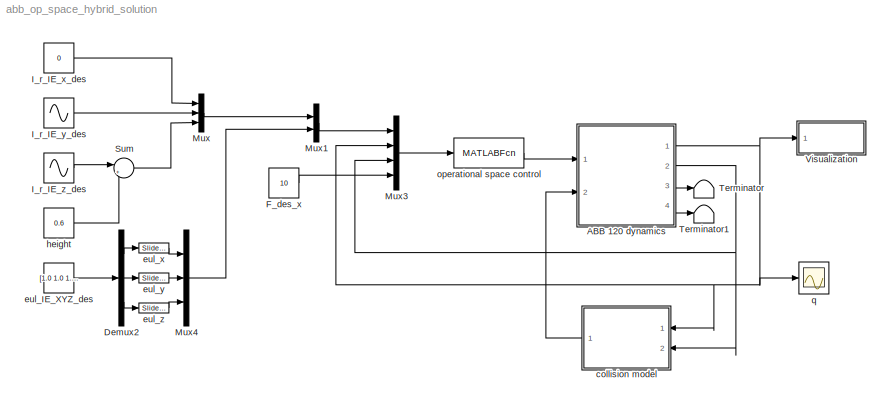
MODEL abb_op_space_hybrid_solution
KIND model
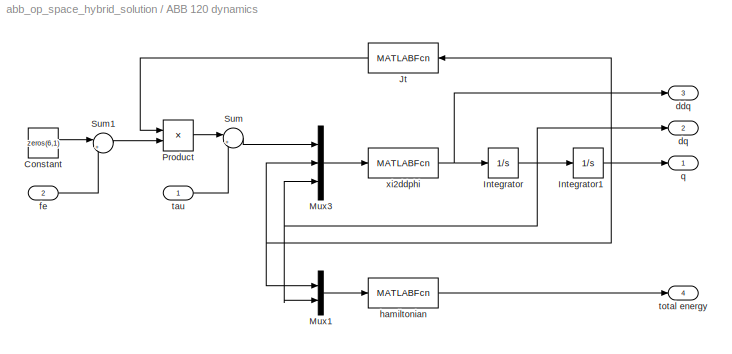
BLOCK [SubSystem] ABB 120 dynamics
  Ports = [2, 4]
  RequestExecContextInheritance = off
  SID = 196
  Variant = off
BLOCK [Constant] ABB 120 dynamics/Constant
  SID = 199
  Value = zeros(6,1)
BLOCK [Integrator] ABB 120 dynamics/Integrator
  InitialCondition = dphi0
  Ports = [1, 1]
  SID = 200
BLOCK [Integrator] ABB 120 dynamics/Integrator1
  InitialCondition = phi0
  Ports = [1, 1]
  SID = 201
BLOCK [MATLABFcn] ABB 120 dynamics/Jt
  MATLABFcn = I_Je_fun_solution(u(1:6))'
  Output1D = off
  OutputDimensions = [6,6]
  OutputSignalType = real
  Ports = [1, 1]
  SID = 202
BLOCK [Mux] ABB 120 dynamics/Mux1
  DisplayOption = bar
  Inputs = 2
  Ports = [2, 1]
  SID = 203
BLOCK [Mux] ABB 120 dynamics/Mux3
  DisplayOption = bar
  Inputs = 3
  Ports = [3, 1]
  SID = 204
BLOCK [Product] ABB 120 dynamics/Product
  InputSameDT = off
  Multiplication = Matrix(*)
  OutDataTypeStr = Inherit: Inherit via internal rule
  Ports = [2, 1]
  RndMeth = Floor
  SID = 205
  SaturateOnIntegerOverflow = off
BLOCK [Sum] ABB 120 dynamics/Sum
  IconShape = round
  InputSameDT = off
  Inputs = |++
  OutDataTypeStr = Inherit: Inherit via internal rule
  Ports = [2, 1]
  SID = 206
  SaturateOnIntegerOverflow = off
BLOCK [Sum] ABB 120 dynamics/Sum1
  IconShape = round
  InputSameDT = off
  Inputs = |++
  OutDataTypeStr = Inherit: Inherit via internal rule
  Ports = [2, 1]
  SID = 207
  SaturateOnIntegerOverflow = off
BLOCK [Outport] ABB 120 dynamics/ddq
  IconDisplay = Port number
  Port = 3
  SID = 212
BLOCK [Outport] ABB 120 dynamics/dq
  IconDisplay = Port number
  Port = 2
  SID = 211
BLOCK [Inport] ABB 120 dynamics/fe
  IconDisplay = Port number
  Port = 2
  SID = 198
BLOCK [MATLABFcn] ABB 120 dynamics/hamiltonian
  MATLABFcn = hamiltonian_fun_solution(u(1:6), u(7:12))
  Output1D = off
  OutputDimensions = [1,1]
  Ports = [1, 1]
  SID = 208
BLOCK [Outport] ABB 120 dynamics/q
  IconDisplay = Port number
  SID = 210
BLOCK [Inport] ABB 120 dynamics/tau
  IconDisplay = Port number
  SID = 197
BLOCK [Outport] ABB 120 dynamics/total energy
  IconDisplay = Port number
  Port = 4
  SID = 213
BLOCK [MATLABFcn] ABB 120 dynamics/xi2ddphi
  MATLABFcn = abb_eom_solution(u(1:6), u(7:12), u(13:18),F,enable_g,enable_f)
  Output1D = off
  OutputDimensions = [6,1]
  Ports = [1, 1]
  SID = 209
BLOCK [Demux] Demux2
  DisplayOption = bar
  Outputs = 3
  Ports = [1, 3]
  SID = 216
BLOCK [Constant] F_des_x
  SID = 138
  Value = 10
BLOCK [Constant] I_r_IE_x_des
  SID = 185
  Value = 0
BLOCK [Sin] I_r_IE_y_des
  Amplitude = 0.1
  Frequency = 2*pi*0.2
  Phase = pi/2
  Ports = [0, 1]
  SID = 180
  SampleTime = 0
BLOCK [Sin] I_r_IE_z_des
  Amplitude = 0.1
  Frequency = 2*pi*0.2
  Ports = [0, 1]
  SID = 184
  SampleTime = 0
BLOCK [Mux] Mux
  DisplayOption = bar
  Inputs = 3
  Ports = [3, 1]
  SID = 181
BLOCK [Mux] Mux1
  DisplayOption = bar
  Inputs = 2
  Ports = [2, 1]
  SID = 186
BLOCK [Mux] Mux3
  DisplayOption = bar
  Ports = [4, 1]
  SID = 135
BLOCK [Mux] Mux4
  DisplayOption = bar
  Inputs = 3
  Ports = [3, 1]
  SID = 217
BLOCK [Sum] Sum
  IconShape = round
  InputSameDT = off
  Inputs = |++
  OutDataTypeStr = Inherit: Inherit via internal rule
  Ports = [2, 1]
  SID = 187
  SaturateOnIntegerOverflow = off
BLOCK [Terminator] Terminator
  SID = 214
BLOCK [Terminator] Terminator1
  SID = 215
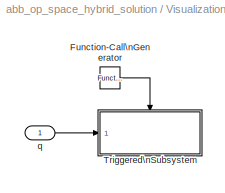
BLOCK [SubSystem] Visualization
  Ports = [1]
  RequestExecContextInheritance = off
  SID = 189
  Variant = off
BLOCK [Reference] Visualization/Function-Call\nGenerator  REF=simulink/Ports &\nSubsystems/Function-Call\nGenerator
  Ports = [0, 1]
  SID = 191
  SourceBlock = simulink/Ports &\nSubsystems/Function-Call\nGenerator
  SourceType = Function-Call Generator
  numberOfIterations = 1
  sample_time = 0.05
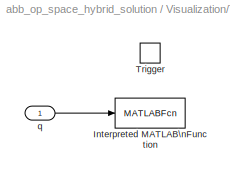
BLOCK [SubSystem] Visualization/Triggered\nSubsystem
  Ports = [1, 0, 0, 1]
  RequestExecContextInheritance = off
  SID = 192
  TreatAsAtomicUnit = on
  Variant = off
BLOCK [MATLABFcn] Visualization/Triggered\nSubsystem/Interpreted MATLAB\nFunction
  MATLABFcn = abbRobot.setJointPositions(u)
  OutputDimensions = 0
  Ports = [1]
  SID = 195
BLOCK [TriggerPort] Visualization/Triggered\nSubsystem/Trigger
  Ports = []
  SID = 194
  StatesWhenEnabling = held
  TriggerType = function-call
  VariantControl = Variant
BLOCK [Inport] Visualization/Triggered\nSubsystem/q
  IconDisplay = Port number
  SID = 193
BLOCK [Inport] Visualization/q
  IconDisplay = Port number
  SID = 190
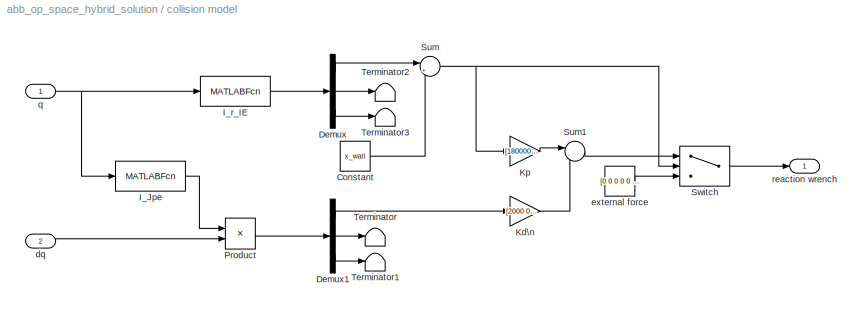
BLOCK [SubSystem] collision model
  Ports = [2, 1]
  RequestExecContextInheritance = off
  SID = 139
  Variant = off
BLOCK [Constant] collision model/Constant
  SID = 142
  Value = x_wall
BLOCK [Demux] collision model/Demux
  DisplayOption = bar
  Outputs = 3
  Ports = [1, 3]
  SID = 143
BLOCK [Demux] collision model/Demux1
  DisplayOption = bar
  Outputs = 3
  Ports = [1, 3]
  SID = 144
BLOCK [MATLABFcn] collision model/I_Jpe
  MATLABFcn = [eye(3) zeros(3,3)] * I_Je_fun_solution(u(1:6))
  Output1D = off
  OutputDimensions = [3,6]
  Ports = [1, 1]
  SID = 160
BLOCK [MATLABFcn] collision model/I_r_IE
  MATLABFcn = I_r_IE_fun_solution(u)
  Output1D = off
  OutputDimensions = [3,1]
  Ports = [1, 1]
  SID = 146
BLOCK [Gain] collision model/Kd\n
  Gain = [2000 0 0 0 0 0]'
  Multiplication = Matrix(K*u)
  OutDataTypeStr = Inherit: Inherit via internal rule
  ParamDataTypeStr = Inherit: Inherit via internal rule
  SID = 147
  SaturateOnIntegerOverflow = off
BLOCK [Gain] collision model/Kp
  Gain = [180000 0 0 0 0 0]'
  Multiplication = Matrix(K*u)
  OutDataTypeStr = Inherit: Inherit via internal rule
  ParamDataTypeStr = Inherit: Inherit via internal rule
  SID = 148
  SaturateOnIntegerOverflow = off
BLOCK [Product] collision model/Product
  InputSameDT = off
  Multiplication = Matrix(*)
  OutDataTypeStr = Inherit: Inherit via internal rule
  Ports = [2, 1]
  RndMeth = Floor
  SID = 161
  SaturateOnIntegerOverflow = off
BLOCK [Sum] collision model/Sum
  IconShape = round
  InputSameDT = off
  Inputs = |+-
  OutDataTypeStr = Inherit: Inherit via internal rule
  Ports = [2, 1]
  SID = 150
  SaturateOnIntegerOverflow = off
BLOCK [Sum] collision model/Sum1
  IconShape = round
  InputSameDT = off
  Inputs = |--
  OutDataTypeStr = Inherit: Inherit via internal rule
  Ports = [2, 1]
  SID = 151
  SaturateOnIntegerOverflow = off
BLOCK [Switch] collision model/Switch
  InputSameDT = off
  SID = 152
  SaturateOnIntegerOverflow = off
  Threshold = 0.0
BLOCK [Terminator] collision model/Terminator
  SID = 153
BLOCK [Terminator] collision model/Terminator1
  SID = 154
BLOCK [Terminator] collision model/Terminator2
  SID = 155
BLOCK [Terminator] collision model/Terminator3
  SID = 156
BLOCK [Inport] collision model/dq
  IconDisplay = Port number
  Port = 2
  SID = 141
BLOCK [Constant] collision model/external force
  SID = 157
  Value = [0 0 0 0 0 0]'
BLOCK [Inport] collision model/q
  IconDisplay = Port number
  SID = 159
BLOCK [Outport] collision model/reaction wrench
  IconDisplay = Port number
  SID = 158
BLOCK [Constant] eul_IE_XYZ_des
  SID = 218
  Value = [1.0 1.0 1.0]'
BLOCK [Reference] eul_x  REF=simulink/Math\nOperations/Slider\nGain
  Ports = [1, 1]
  SID = 219
  SourceBlock = simulink/Math\nOperations/Slider\nGain
  SourceType = Slider Gain
  gain = 0
  high = 2
  low = -2
BLOCK [Reference] eul_y  REF=simulink/Math\nOperations/Slider\nGain
  Ports = [1, 1]
  SID = 220
  SourceBlock = simulink/Math\nOperations/Slider\nGain
  SourceType = Slider Gain
  gain = 0
  high = 2
  low = -2
BLOCK [Reference] eul_z  REF=simulink/Math\nOperations/Slider\nGain
  Ports = [1, 1]
  SID = 221
  SourceBlock = simulink/Math\nOperations/Slider\nGain
  SourceType = Slider Gain
  gain = 0
  high = 2
  low = -2
BLOCK [Constant] height
  SID = 188
  Value = 0.6
BLOCK [MATLABFcn] operational space control
  MATLABFcn = control_op_space_hybrid_solution( u(1:3), u(4:6), u(7:12), u(13:18), u(19))
  Output1D = off
  OutputDimensions = [6,1]
  Ports = [1, 1]
  SID = 134
BLOCK [Scope] q
  NumInputPorts = 1
  Ports = [1]
  SID = 14
  ScopeSpecificationString = Simulink.scopes.TimeScopeBlockCfg('CurrentConfiguration', extmgr.ConfigurationSet(extmgr.Configuration('Core','General UI',true,'FigureColor',[0.156862745098039 0.156862745098039 0.156862745098039]),extmgr.Configuration('Core','Source UI',true),extmgr.Configuration('Sources','WiredSimulink',true,'DataLoggingSaveFormat','StructureWithTime','DataLoggingDecimation','1','DataLoggingDecimateData',true)...<+2688ch>
LINE ABB 120 dynamics/Constant:1 -> ABB 120 dynamics/Sum1:1
NET ABB 120 dynamics/Integrator1:1 -> ABB 120 dynamics/Jt:1, ABB 120 dynamics/Mux1:1, ABB 120 dynamics/Mux3:2, ABB 120 dynamics/q:1
NET ABB 120 dynamics/Integrator:1 -> ABB 120 dynamics/Integrator1:1, ABB 120 dynamics/Mux1:2, ABB 120 dynamics/Mux3:3, ABB 120 dynamics/dq:1
LINE ABB 120 dynamics/Jt:1 -> ABB 120 dynamics/Product:1
LINE ABB 120 dynamics/Mux1:1 -> ABB 120 dynamics/hamiltonian:1
LINE ABB 120 dynamics/Mux3:1 -> ABB 120 dynamics/xi2ddphi:1
LINE ABB 120 dynamics/Product:1 -> ABB 120 dynamics/Sum:1
LINE ABB 120 dynamics/Sum1:1 -> ABB 120 dynamics/Product:2
LINE ABB 120 dynamics/Sum:1 -> ABB 120 dynamics/Mux3:1
LINE ABB 120 dynamics/fe:1 -> ABB 120 dynamics/Sum1:2
LINE ABB 120 dynamics/hamiltonian:1 -> ABB 120 dynamics/total energy:1
LINE ABB 120 dynamics/tau:1 -> ABB 120 dynamics/Sum:2
NET ABB 120 dynamics/xi2ddphi:1 -> ABB 120 dynamics/Integrator:1, ABB 120 dynamics/ddq:1
NET ABB 120 dynamics:1 -> Mux3:2, Visualization:1, collision model:1, q:1
NET ABB 120 dynamics:2 -> Mux3:3, collision model:2
LINE ABB 120 dynamics:3 -> Terminator:1
LINE ABB 120 dynamics:4 -> Terminator1:1
LINE Demux2:1 -> eul_x:1
LINE Demux2:2 -> eul_y:1
LINE Demux2:3 -> eul_z:1
LINE F_des_x:1 -> Mux3:4
LINE I_r_IE_x_des:1 -> Mux:1
LINE I_r_IE_y_des:1 -> Mux:2
LINE I_r_IE_z_des:1 -> Sum:1
LINE Mux1:1 -> Mux3:1
LINE Mux3:1 -> operational space control:1
LINE Mux4:1 -> Mux1:2
LINE Mux:1 -> Mux1:1
LINE Sum:1 -> Mux:3
LINE Visualization/Function-Call\nGenerator:1 -> Visualization/Triggered\nSubsystem:trigger
LINE Visualization/Triggered\nSubsystem/q:1 -> Visualization/Triggered\nSubsystem/Interpreted MATLAB\nFunction:1
LINE Visualization/q:1 -> Visualization/Triggered\nSubsystem:1
LINE collision model/Constant:1 -> collision model/Sum:2
LINE collision model/Demux1:1 -> collision model/Kd\n:1
LINE collision model/Demux1:2 -> collision model/Terminator:1
LINE collision model/Demux1:3 -> collision model/Terminator1:1
LINE collision model/Demux:1 -> collision model/Sum:1
LINE collision model/Demux:2 -> collision model/Terminator2:1
LINE collision model/Demux:3 -> collision model/Terminator3:1
LINE collision model/I_Jpe:1 -> collision model/Product:1
LINE collision model/I_r_IE:1 -> collision model/Demux:1
LINE collision model/Kd\n:1 -> collision model/Sum1:2
LINE collision model/Kp:1 -> collision model/Sum1:1
LINE collision model/Product:1 -> collision model/Demux1:1
LINE collision model/Sum1:1 -> collision model/Switch:1
NET collision model/Sum:1 -> collision model/Kp:1, collision model/Switch:2
LINE collision model/Switch:1 -> collision model/reaction wrench:1
LINE collision model/dq:1 -> collision model/Product:2
LINE collision model/external force:1 -> collision model/Switch:3
NET collision model/q:1 -> collision model/I_Jpe:1, collision model/I_r_IE:1
LINE collision model:1 -> ABB 120 dynamics:2
LINE eul_IE_XYZ_des:1 -> Demux2:1
LINE eul_x:1 -> Mux4:1
LINE eul_y:1 -> Mux4:2
LINE eul_z:1 -> Mux4:3
LINE height:1 -> Sum:2
LINE operational space control:1 -> ABB 120 dynamics:1
note: NET lines group one-source signal fan-out (src -> all destinations, sorted); 1:1 wires keep LINE
